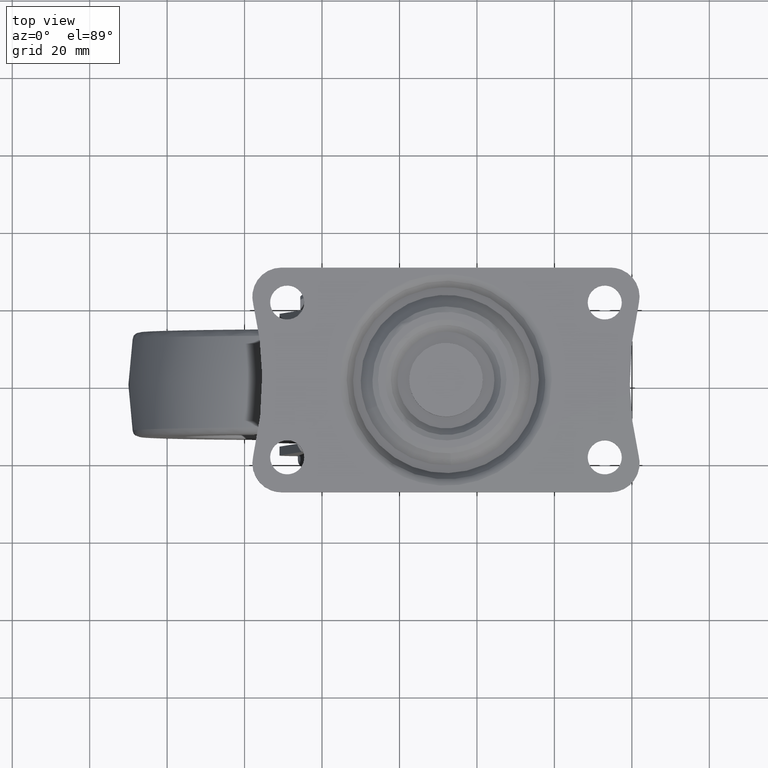
[diagram: clean part render]
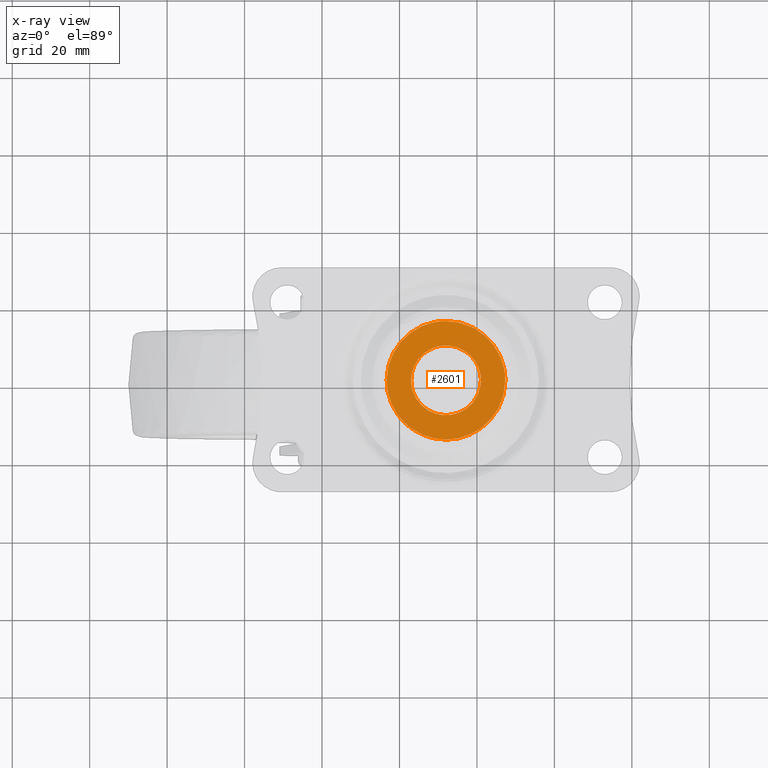
[diagram: x-ray — body ghosted, one internal face saturated and labeled with its STEP entity id]
A machine part, top view, then the same camera in x-ray: the body is ghosted and one INTERNAL B-rep face — a face not visible from any outside direction — is saturated and labeled: STEP entity #2601.
In plain terms, the highlighted face is a freeform B-spline surface patch.
Its self-contained STEP definition (entity closure, byte-faithful):
#70=CARTESIAN_POINT('',(40.425292208985631,3.164561769535432,64.099995999999791));
#71=VERTEX_POINT('',#70);
#72=CARTESIAN_POINT('',(41.0,-1.136868E-013,64.099995999999791));
#73=VERTEX_POINT('',#72);
#74=CARTESIAN_POINT('',(40.425292208985617,3.164561769535432,64.099995999999791));
#75=CARTESIAN_POINT('',(41.000000000000007,1.634466474613311,64.099995999999791));
#76=CARTESIAN_POINT('',(41.0,-1.136868E-013,64.099995999999791));
#84=(BOUNDED_CURVE()B_SPLINE_CURVE(2,(#74,#75,#76),.UNSPECIFIED.,.F.,.U.)B_SPLINE_CURVE_WITH_KNOTS((3,3),(0.940284170898482,1.0),.UNSPECIFIED.)CURVE()GEOMETRIC_REPRESENTATION_ITEM()RATIONAL_B_SPLINE_CURVE((0.893499554635243,0.930038554401369,1.0))REPRESENTATION_ITEM(''));
#85=EDGE_CURVE('',#71,#73,#84,.T.);
#156=CARTESIAN_POINT('',(31.450563144032611,8.983213185787287,64.099995999999791));
#157=VERTEX_POINT('',#156);
#163=CARTESIAN_POINT('',(23.0,-1.136868E-013,64.099995999999791));
#164=VERTEX_POINT('',#163);
#165=CARTESIAN_POINT('',(23.0,-1.136868E-013,64.099995999999791));
#166=CARTESIAN_POINT('',(23.000000000000004,8.466354601860948,64.099995999999791));
#167=CARTESIAN_POINT('',(31.450563144032618,8.983213185787287,64.099995999999777));
#175=(BOUNDED_CURVE()B_SPLINE_CURVE(2,(#165,#166,#167),.UNSPECIFIED.,.F.,.U.)B_SPLINE_CURVE_WITH_KNOTS((3,3),(0.500000000000000,0.739332962236065),.UNSPECIFIED.)CURVE()GEOMETRIC_REPRESENTATION_ITEM()RATIONAL_B_SPLINE_CURVE((1.0,0.719603993290082,0.976072041660550))REPRESENTATION_ITEM(''));
#176=EDGE_CURVE('',#164,#157,#175,.T.);
#178=CARTESIAN_POINT('',(41.0,-1.136868E-013,64.099995999999791));
#179=CARTESIAN_POINT('',(41.000000000000007,-9.000000000000116,64.099995999999791));
#180=CARTESIAN_POINT('',(32.0,-9.000000000000114,64.099995999999791));
#181=CARTESIAN_POINT('',(22.999999999999996,-9.000000000000116,64.099995999999791));
#182=CARTESIAN_POINT('',(23.0,-1.136868E-013,64.099995999999791));
#190=(BOUNDED_CURVE()B_SPLINE_CURVE(2,(#178,#179,#180,#181,#182),.UNSPECIFIED.,.F.,.U.)B_SPLINE_CURVE_WITH_KNOTS((3,2,3),(0.0,0.250000000000000,0.500000000000000),.UNSPECIFIED.)CURVE()GEOMETRIC_REPRESENTATION_ITEM()RATIONAL_B_SPLINE_CURVE((1.0,0.707106781186547,1.0,0.707106781186547,1.0))REPRESENTATION_ITEM(''));
#191=EDGE_CURVE('',#73,#164,#190,.T.);
#210=CARTESIAN_POINT('',(31.450563144032618,8.983213185787285,64.099995999999791));
#211=CARTESIAN_POINT('',(31.725025130158585,8.999999999999885,64.099995999999805));
#212=CARTESIAN_POINT('',(32.0,8.999999999999885,64.099995999999791));
#213=CARTESIAN_POINT('',(38.233486361231726,8.999999999999885,64.099995999999805));
#214=CARTESIAN_POINT('',(40.425292208985631,3.164561769535431,64.099995999999791));
#222=(BOUNDED_CURVE()B_SPLINE_CURVE(2,(#210,#211,#212,#213,#214),.UNSPECIFIED.,.F.,.U.)B_SPLINE_CURVE_WITH_KNOTS((3,2,3),(0.739332962236065,0.750000000000000,0.940284170898481),.UNSPECIFIED.)CURVE()GEOMETRIC_REPRESENTATION_ITEM()RATIONAL_B_SPLINE_CURVE((0.976072041660549,0.987502787896465,1.0,0.777068226785179,0.893499554635242))REPRESENTATION_ITEM(''));
#223=EDGE_CURVE('',#157,#71,#222,.T.);
#1775=CARTESIAN_POINT('',(19.523635629034679,-8.908688191266606,64.099995999150053));
#1776=VERTEX_POINT('',#1775);
#1792=CARTESIAN_POINT('',(16.669494685734900,-1.136868E-013,64.099995999999791));
#1793=VERTEX_POINT('',#1792);
#1794=CARTESIAN_POINT('',(19.523635629034683,-8.908688191266606,64.099995999150053));
#1795=CARTESIAN_POINT('',(16.669494685734900,-4.911544996013478,64.099995999999805));
#1796=CARTESIAN_POINT('',(16.669494685734900,-1.136868E-013,64.099995999999791));
#1804=(BOUNDED_CURVE()B_SPLINE_CURVE(2,(#1794,#1795,#1796),.UNSPECIFIED.,.F.,.U.)B_SPLINE_CURVE_WITH_KNOTS((3,3),(0.899999999999424,1.0),.UNSPECIFIED.)CURVE()GEOMETRIC_REPRESENTATION_ITEM()RATIONAL_B_SPLINE_CURVE((0.859411254969273,0.882842712473944,1.0))REPRESENTATION_ITEM(''));
#1805=EDGE_CURVE('',#1776,#1793,#1804,.T.);
#1807=CARTESIAN_POINT('',(32.0,15.330505314347230,64.099995999862386));
#1808=VERTEX_POINT('',#1807);
#1809=CARTESIAN_POINT('',(16.669494685734900,-1.136868E-013,64.099995999999791));
#1810=CARTESIAN_POINT('',(16.669494685734897,15.330505314264995,64.099995999999791));
#1811=CARTESIAN_POINT('',(32.0,15.330505314347230,64.099995999862386));
#1819=(BOUNDED_CURVE()B_SPLINE_CURVE(2,(#1809,#1810,#1811),.UNSPECIFIED.,.F.,.U.)B_SPLINE_CURVE_WITH_KNOTS((3,3),(0.0,0.250000000000000),.UNSPECIFIED.)CURVE()GEOMETRIC_REPRESENTATION_ITEM()RATIONAL_B_SPLINE_CURVE((1.0,0.707106781186547,1.0))REPRESENTATION_ITEM(''));
#1820=EDGE_CURVE('',#1793,#1808,#1819,.T.);
#1944=CARTESIAN_POINT('',(47.330505314265103,-1.136868E-013,64.099995999999791));
#1945=VERTEX_POINT('',#1944);
#1946=CARTESIAN_POINT('',(32.0,15.330505314347230,64.099995999862386));
#1947=CARTESIAN_POINT('',(47.330505314265089,15.330505314264993,64.099995999999791));
#1948=CARTESIAN_POINT('',(47.330505314265103,-1.136868E-013,64.099995999999791));
#1956=(BOUNDED_CURVE()B_SPLINE_CURVE(2,(#1946,#1947,#1948),.UNSPECIFIED.,.F.,.U.)B_SPLINE_CURVE_WITH_KNOTS((3,3),(0.250000000000000,0.500000000000000),.UNSPECIFIED.)CURVE()GEOMETRIC_REPRESENTATION_ITEM()RATIONAL_B_SPLINE_CURVE((1.0,0.707106781186547,1.0))REPRESENTATION_ITEM(''));
#1957=EDGE_CURVE('',#1808,#1945,#1956,.T.);
#1959=CARTESIAN_POINT('',(47.330505314265103,-1.136868E-013,64.099995999999791));
#1960=CARTESIAN_POINT('',(47.330505314265089,-15.330505314265219,64.099995999999791));
#1961=CARTESIAN_POINT('',(32.0,-15.330505314265221,64.099995999999791));
#1962=CARTESIAN_POINT('',(24.109103372449859,-15.330505314265213,64.099995999999791));
#1963=CARTESIAN_POINT('',(19.523635629034686,-8.908688191266606,64.099995999150053));
#1971=(BOUNDED_CURVE()B_SPLINE_CURVE(2,(#1959,#1960,#1961,#1962,#1963),.UNSPECIFIED.,.F.,.U.)B_SPLINE_CURVE_WITH_KNOTS((3,2,3),(0.500000000000000,0.750000000000000,0.899999999999425),.UNSPECIFIED.)CURVE()GEOMETRIC_REPRESENTATION_ITEM()RATIONAL_B_SPLINE_CURVE((1.0,0.707106781186547,1.0,0.824264068712602,0.859411254969273))REPRESENTATION_ITEM(''));
#1972=EDGE_CURVE('',#1945,#1776,#1971,.T.);
#2584=CARTESIAN_POINT('',(15.137976976443170,-16.856516621624159,64.099995999999791));
#2585=CARTESIAN_POINT('',(48.862023571818433,-16.856516621624159,64.099995999999791));
#2586=CARTESIAN_POINT('',(15.137976976443170,16.861761611382551,64.099995999999791));
#2587=CARTESIAN_POINT('',(48.862023571818433,16.861761611382551,64.099995999999791));
#2588=B_SPLINE_SURFACE_WITH_KNOTS('',1,1,((#2584,#2586),(#2585,#2587)),.UNSPECIFIED.,.F.,.F.,.U.,(2,2),(2,2),(0.0,33.724046595375263),(0.0,33.718278233006707),.UNSPECIFIED.);
#2589=ORIENTED_EDGE('',*,*,#1805,.F.);
#2590=ORIENTED_EDGE('',*,*,#1972,.F.);
#2591=ORIENTED_EDGE('',*,*,#1957,.F.);
#2592=ORIENTED_EDGE('',*,*,#1820,.F.);
#2593=EDGE_LOOP('',(#2589,#2590,#2591,#2592));
#2594=FACE_OUTER_BOUND('',#2593,.T.);
#2595=ORIENTED_EDGE('',*,*,#191,.T.);
#2596=ORIENTED_EDGE('',*,*,#176,.T.);
#2597=ORIENTED_EDGE('',*,*,#223,.T.);
#2598=ORIENTED_EDGE('',*,*,#85,.T.);
#2599=EDGE_LOOP('',(#2595,#2596,#2597,#2598));
#2600=FACE_BOUND('',#2599,.T.);
#2601=ADVANCED_FACE('',(#2594,#2600),#2588,.T.);